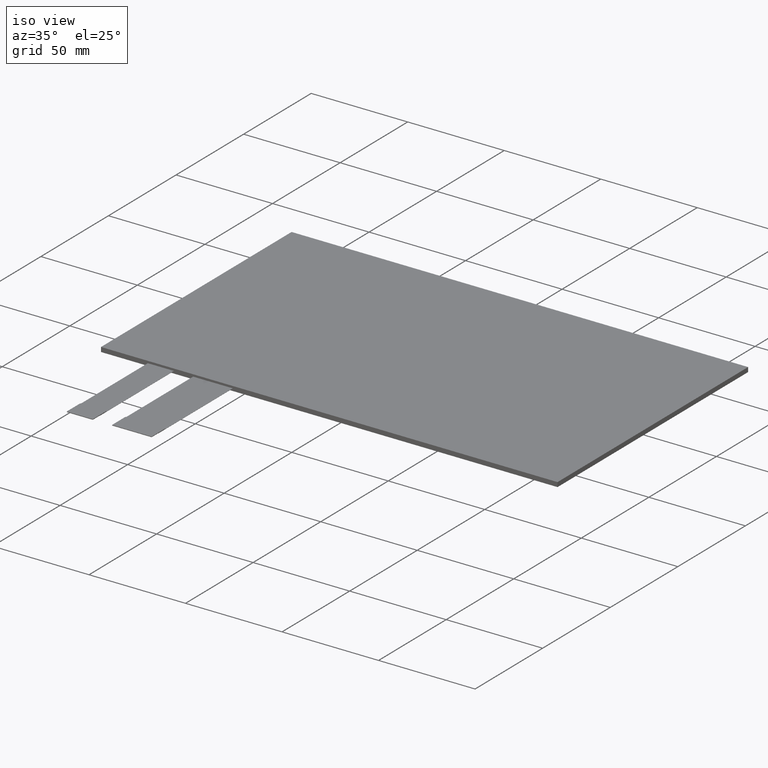
[diagram: clean part render]
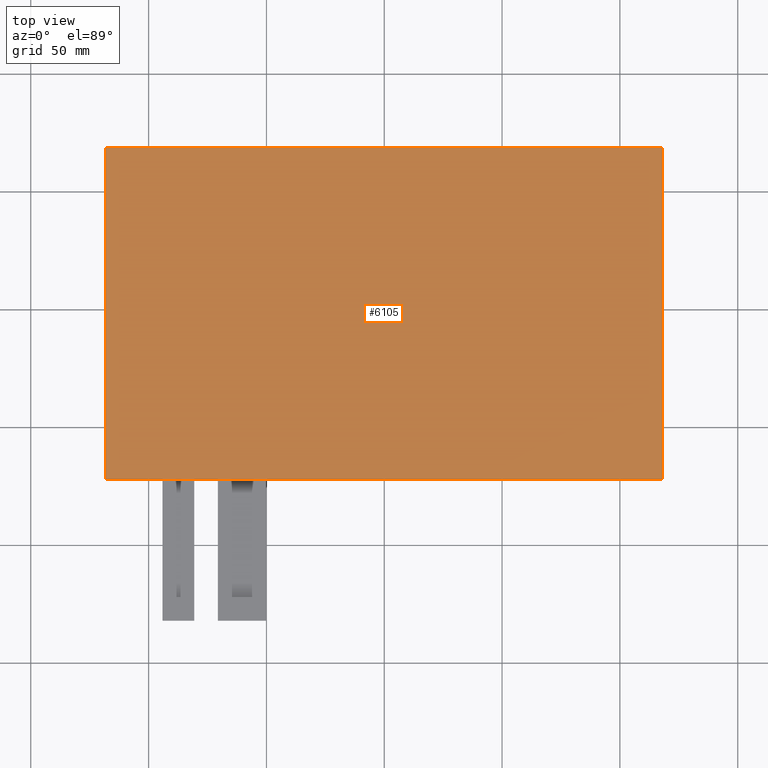
[diagram: tour spotlight — one face highlighted and labeled with its STEP entity id]
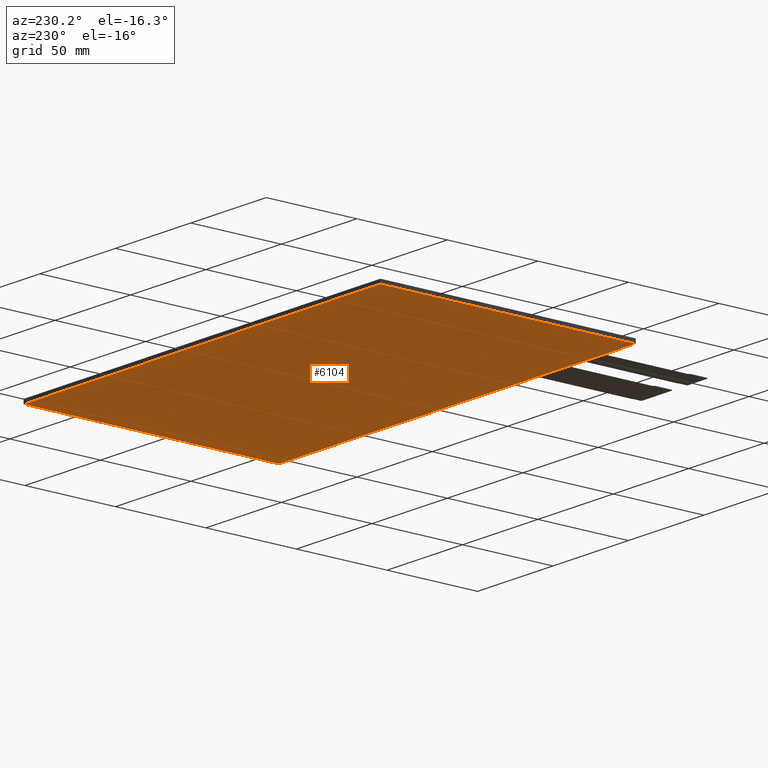
[diagram: tour spotlight — one face highlighted and labeled with its STEP entity id]
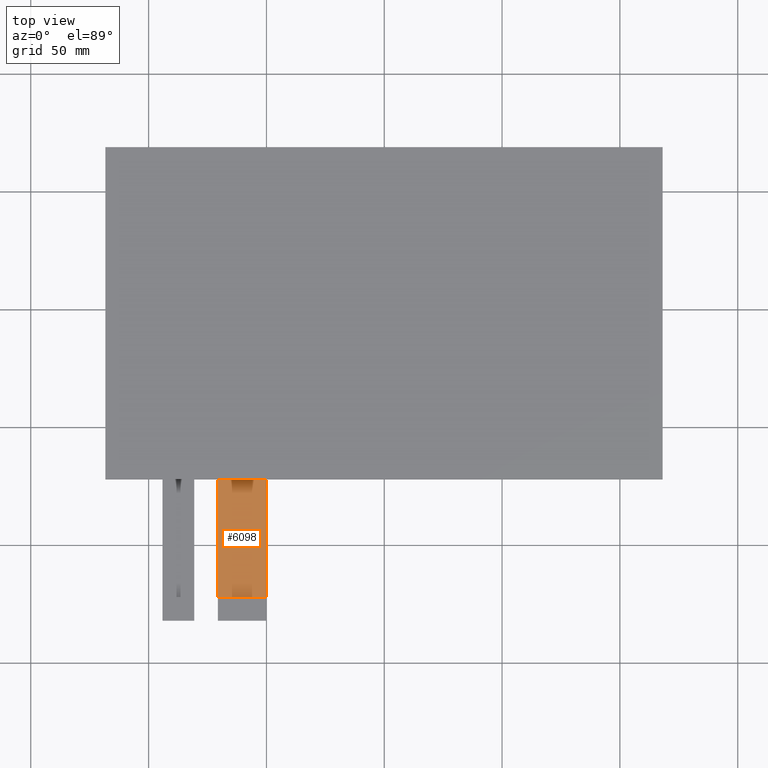
[diagram: tour spotlight — one face highlighted and labeled with its STEP entity id]
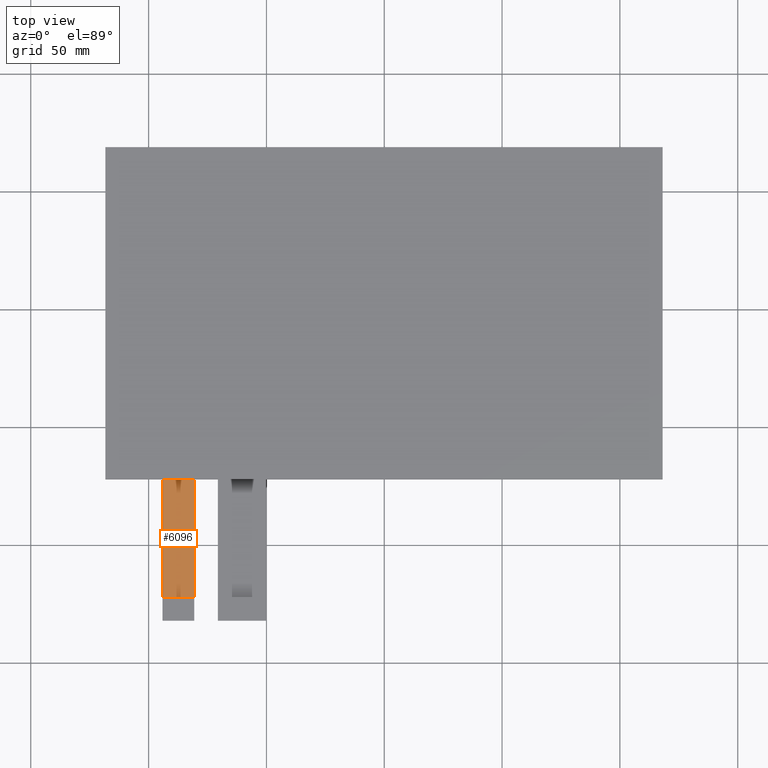
[diagram: tour spotlight — one face highlighted and labeled with its STEP entity id]
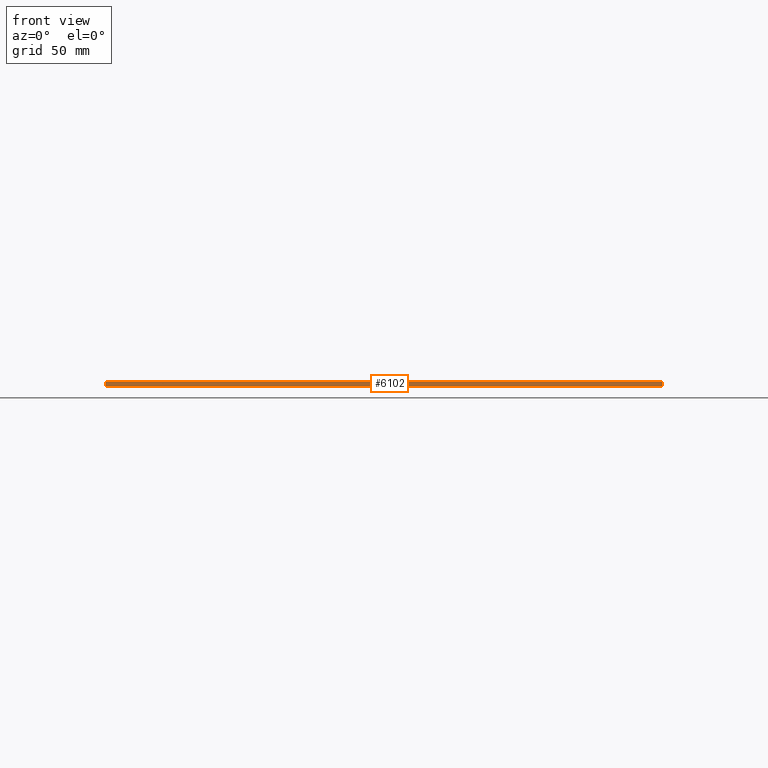
[diagram: tour spotlight — one face highlighted and labeled with its STEP entity id]
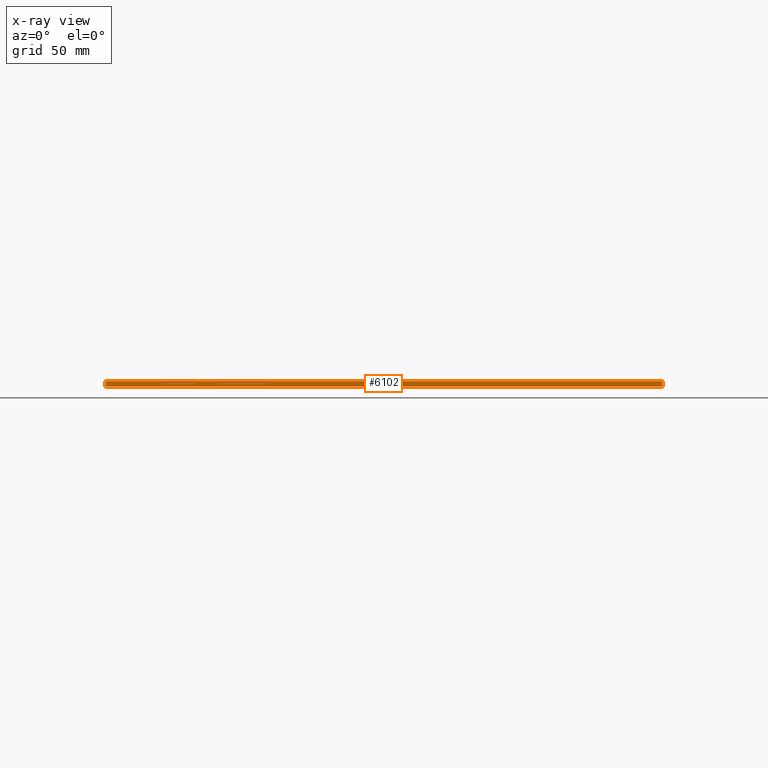
[diagram: x-ray of the same camera — body ghosted, this tour face saturated]
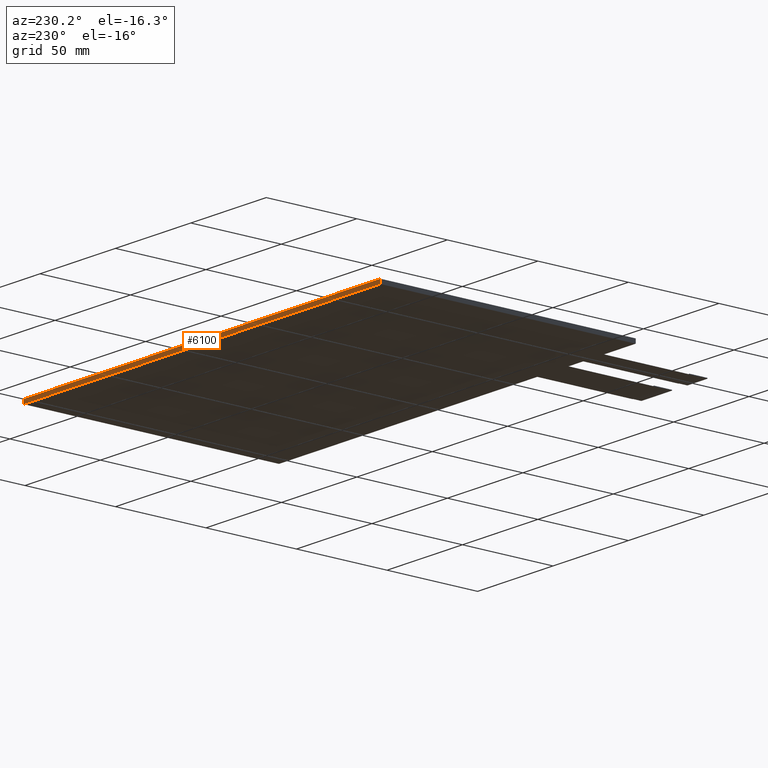
[diagram: tour spotlight — one face highlighted and labeled with its STEP entity id]
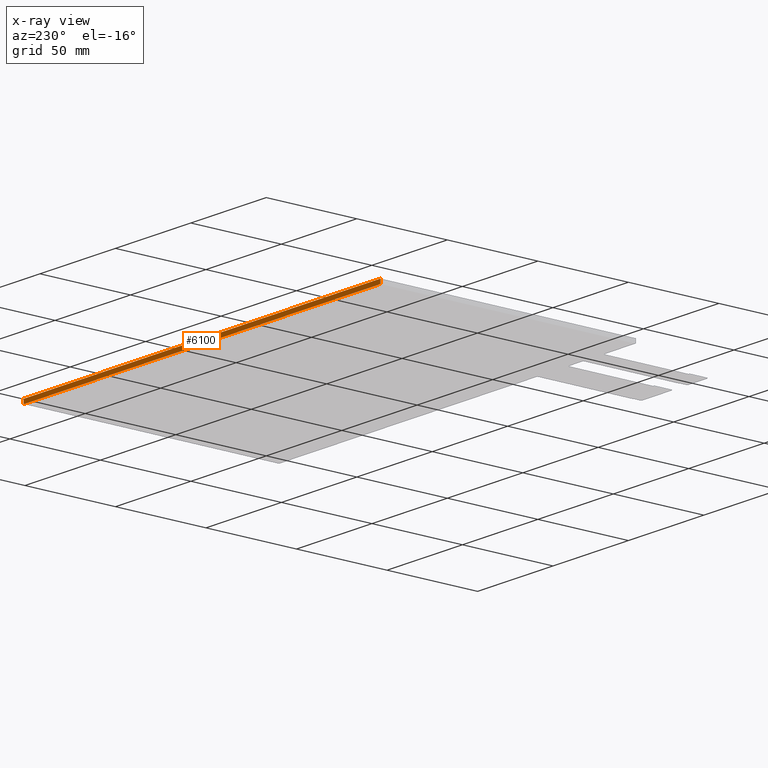
[diagram: x-ray of the same camera — body ghosted, this tour face saturated]
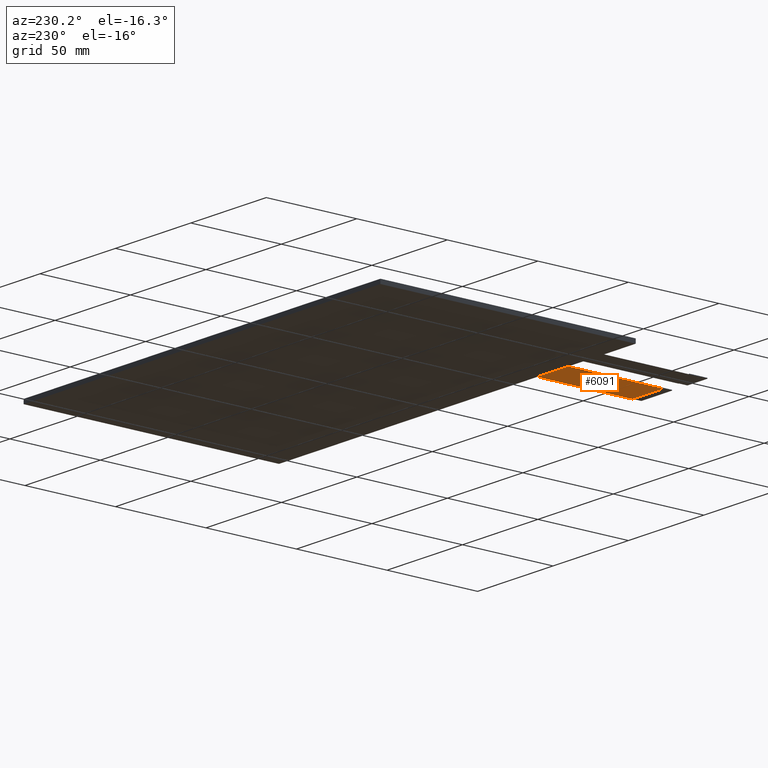
[diagram: tour spotlight — one face highlighted and labeled with its STEP entity id]
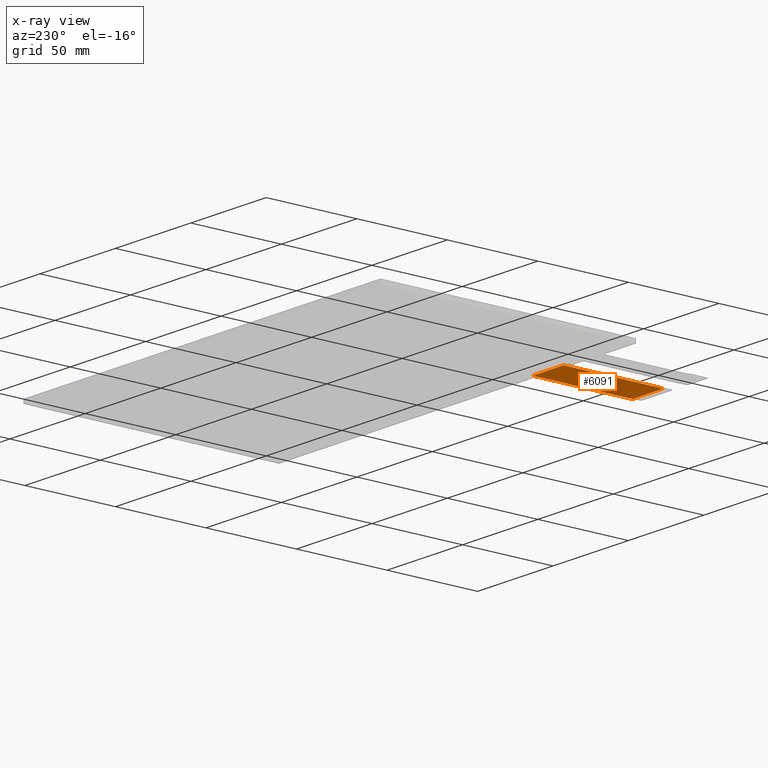
[diagram: x-ray of the same camera — body ghosted, this tour face saturated]
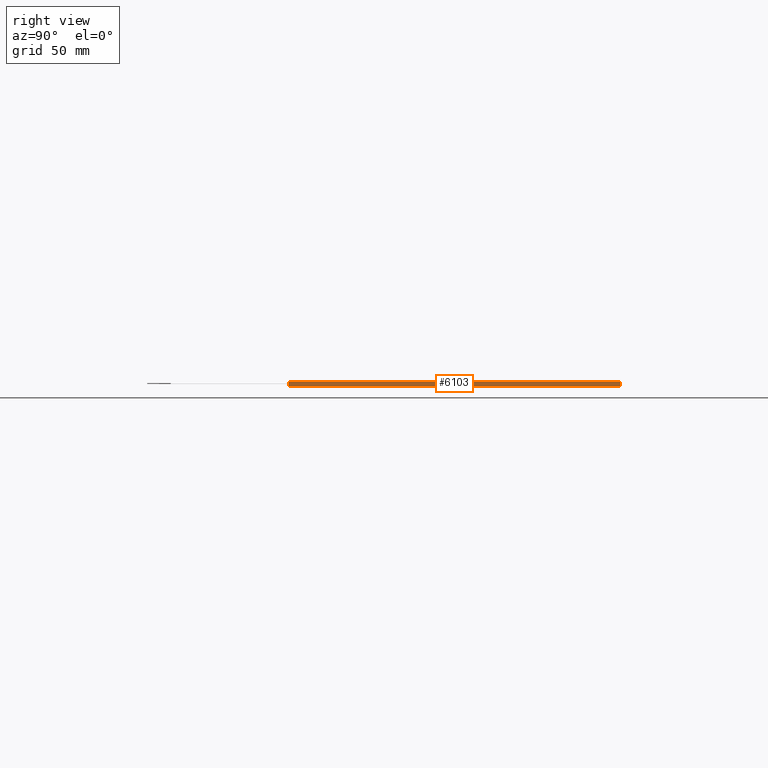
[diagram: tour spotlight — one face highlighted and labeled with its STEP entity id]
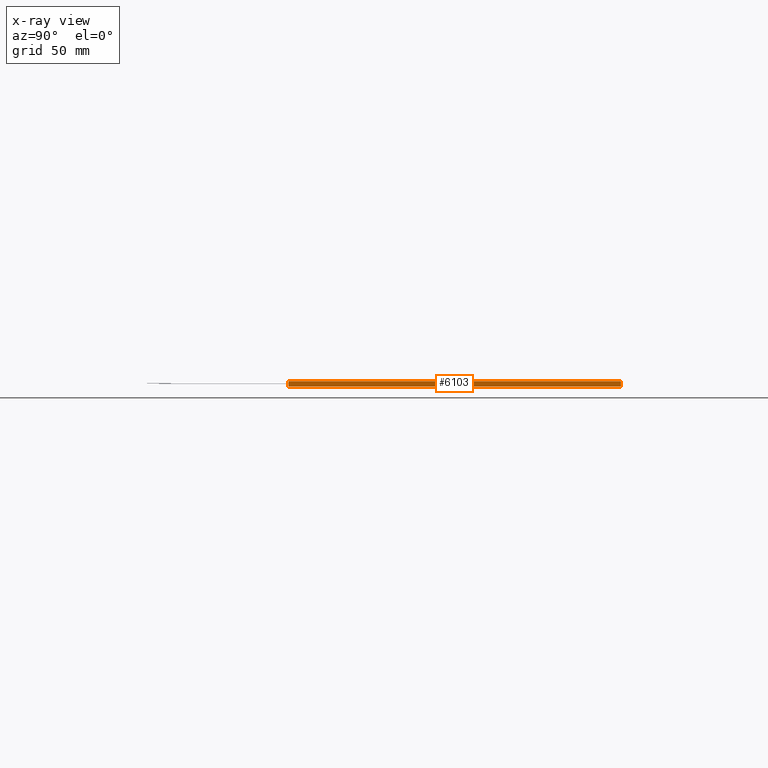
[diagram: x-ray of the same camera — body ghosted, this tour face saturated]
A machine part: a face-by-face anatomy tour. The part has 292 B-rep faces; the first image is the clean iso view, then the 8 largest visible faces are spotlighted one at a time (largest first), each with its STEP entity span.

Face 1 — top view, entity #6105. In plain terms, the highlighted planar face has unit normal (0, 0, 1).
Definition (entity closure, byte-faithful):
#335=PLANE('',#6425);
#627=FACE_OUTER_BOUND('',#921,.T.);
#921=EDGE_LOOP('',(#5806,#5807,#5808,#5809));
#1766=LINE('',#9594,#2622);
#1770=LINE('',#9602,#2626);
#1773=LINE('',#9608,#2629);
#1776=LINE('',#9613,#2632);
#2622=VECTOR('',#7862,10.);
#2626=VECTOR('',#7868,10.);
#2629=VECTOR('',#7873,10.);
#2632=VECTOR('',#7878,10.);
#3210=VERTEX_POINT('',#9592);
#3211=VERTEX_POINT('',#9593);
#3214=VERTEX_POINT('',#9601);
#3216=VERTEX_POINT('',#9607);
#4070=EDGE_CURVE('',#3210,#3211,#1766,.T.);
#4074=EDGE_CURVE('',#3211,#3214,#1770,.T.);
#4077=EDGE_CURVE('',#3214,#3216,#1773,.T.);
#4080=EDGE_CURVE('',#3216,#3210,#1776,.T.);
#5806=ORIENTED_EDGE('',*,*,#4080,.T.);
#5807=ORIENTED_EDGE('',*,*,#4070,.T.);
#5808=ORIENTED_EDGE('',*,*,#4074,.T.);
#5809=ORIENTED_EDGE('',*,*,#4077,.T.);
#6105=ADVANCED_FACE('',(#627),#335,.T.);
#6425=AXIS2_PLACEMENT_3D('',#9616,#7882,#7883);
#7862=DIRECTION('',(-1.,0.,0.));
#7868=DIRECTION('',(1.25982754567394E-16,-1.,0.));
#7873=DIRECTION('',(1.,1.12665338651179E-16,0.));
#7878=DIRECTION('',(0.,1.,0.));
#7882=DIRECTION('center_axis',(0.,0.,1.));
#7883=DIRECTION('ref_axis',(1.,0.,0.));
#9592=CARTESIAN_POINT('',(118.14,68.92,0.));
#9593=CARTESIAN_POINT('',(-118.36,68.92,0.));
#9594=CARTESIAN_POINT('',(118.14,68.92,0.));
#9601=CARTESIAN_POINT('',(-118.36,-72.08,0.));
#9602=CARTESIAN_POINT('',(-118.36,68.9200000000001,0.));
#9607=CARTESIAN_POINT('',(118.14,-72.08,0.));
#9608=CARTESIAN_POINT('',(-118.36,-72.08,0.));
#9613=CARTESIAN_POINT('',(118.14,-72.08,0.));
#9616=CARTESIAN_POINT('Origin',(-8.88178419700125E-15,1.77635683940025E-14,
0.));

Face 2 — auxiliary view, entity #6104. In plain terms, the highlighted planar face has unit normal (0, 0, -1).
Definition (entity closure, byte-faithful):
#334=PLANE('',#6424);
#626=FACE_OUTER_BOUND('',#920,.T.);
#920=EDGE_LOOP('',(#5802,#5803,#5804,#5805));
#1768=LINE('',#9598,#2624);
#1771=LINE('',#9604,#2627);
#1774=LINE('',#9610,#2630);
#1777=LINE('',#9614,#2633);
#2624=VECTOR('',#7864,10.);
#2627=VECTOR('',#7869,10.);
#2630=VECTOR('',#7874,10.);
#2633=VECTOR('',#7879,10.);
#3212=VERTEX_POINT('',#9595);
#3213=VERTEX_POINT('',#9597);
#3215=VERTEX_POINT('',#9603);
#3217=VERTEX_POINT('',#9609);
#4072=EDGE_CURVE('',#3213,#3212,#1768,.T.);
#4075=EDGE_CURVE('',#3215,#3213,#1771,.T.);
#4078=EDGE_CURVE('',#3217,#3215,#1774,.T.);
#4081=EDGE_CURVE('',#3212,#3217,#1777,.T.);
#5802=ORIENTED_EDGE('',*,*,#4081,.T.);
#5803=ORIENTED_EDGE('',*,*,#4078,.T.);
#5804=ORIENTED_EDGE('',*,*,#4075,.T.);
#5805=ORIENTED_EDGE('',*,*,#4072,.T.);
#6104=ADVANCED_FACE('',(#626),#334,.T.);
#6424=AXIS2_PLACEMENT_3D('',#9615,#7880,#7881);
#7864=DIRECTION('',(1.,0.,0.));
#7869=DIRECTION('',(-1.25982754567394E-16,1.,0.));
#7874=DIRECTION('',(-1.,-1.12665338651179E-16,0.));
#7879=DIRECTION('',(0.,-1.,0.));
#7880=DIRECTION('center_axis',(0.,0.,-1.));
#7881=DIRECTION('ref_axis',(-1.,0.,0.));
#9595=CARTESIAN_POINT('',(118.14,68.92,-2.35));
#9597=CARTESIAN_POINT('',(-118.36,68.92,-2.35));
#9598=CARTESIAN_POINT('',(118.14,68.92,-2.35));
#9603=CARTESIAN_POINT('',(-118.36,-72.08,-2.35));
#9604=CARTESIAN_POINT('',(-118.36,68.9200000000001,-2.35));
#9609=CARTESIAN_POINT('',(118.14,-72.08,-2.35));
#9610=CARTESIAN_POINT('',(-118.36,-72.08,-2.35));
#9614=CARTESIAN_POINT('',(118.14,-72.08,-2.35));
#9615=CARTESIAN_POINT('Origin',(-0.110000000000028,-1.57999999999998,-2.35));

Face 3 — top view, entity #6098. In plain terms, the highlighted planar face has unit normal (0, 0, 1).
Definition (entity closure, byte-faithful):
#328=PLANE('',#6418);
#620=FACE_OUTER_BOUND('',#912,.T.);
#912=EDGE_LOOP('',(#5770,#5771,#5772,#5773));
#1755=LINE('',#9571,#2611);
#1757=LINE('',#9575,#2613);
#1763=LINE('',#9586,#2619);
#1764=LINE('',#9588,#2620);
#2611=VECTOR('',#7835,10.);
#2613=VECTOR('',#7839,10.);
#2619=VECTOR('',#7853,10.);
#2620=VECTOR('',#7856,10.);
#3206=VERTEX_POINT('',#9568);
#3207=VERTEX_POINT('',#9570);
#3208=VERTEX_POINT('',#9574);
#3209=VERTEX_POINT('',#9584);
#4059=EDGE_CURVE('',#3207,#3206,#1755,.T.);
#4061=EDGE_CURVE('',#3206,#3208,#1757,.T.);
#4067=EDGE_CURVE('',#3208,#3209,#1763,.T.);
#4068=EDGE_CURVE('',#3207,#3209,#1764,.T.);
#5770=ORIENTED_EDGE('',*,*,#4061,.T.);
#5771=ORIENTED_EDGE('',*,*,#4067,.T.);
#5772=ORIENTED_EDGE('',*,*,#4068,.F.);
#5773=ORIENTED_EDGE('',*,*,#4059,.T.);
#6098=ADVANCED_FACE('',(#620),#328,.T.);
#6418=AXIS2_PLACEMENT_3D('',#9587,#7854,#7855);
#7835=DIRECTION('',(1.48029736616688E-16,-1.,0.));
#7839=DIRECTION('',(1.,0.,0.));
#7853=DIRECTION('',(-2.96059473233375E-16,1.,0.));
#7854=DIRECTION('center_axis',(0.,0.,1.));
#7855=DIRECTION('ref_axis',(1.,0.,0.));
#7856=DIRECTION('',(1.,1.12665338651179E-16,0.));
#9568=CARTESIAN_POINT('',(-70.61,-122.08,-1.1));
#9570=CARTESIAN_POINT('',(-70.61,-72.08,-1.1));
#9571=CARTESIAN_POINT('',(-70.61,-72.08,-1.1));
#9574=CARTESIAN_POINT('',(-50.11,-122.08,-1.1));
#9575=CARTESIAN_POINT('',(-55.235,-122.08,-1.1));
#9584=CARTESIAN_POINT('',(-50.11,-72.08,-1.1));
#9586=CARTESIAN_POINT('',(-50.11,-132.08,-1.1));
#9587=CARTESIAN_POINT('Origin',(-60.36,-102.08,-1.1));
#9588=CARTESIAN_POINT('',(28.89,-72.08,-1.1));

Face 4 — top view, entity #6096. In plain terms, the highlighted planar face has unit normal (0, 0, 1).
Definition (entity closure, byte-faithful):
#326=PLANE('',#6416);
#618=FACE_OUTER_BOUND('',#910,.T.);
#910=EDGE_LOOP('',(#5758,#5759,#5760,#5761));
#1039=LINE('',#8130,#1895);
#1748=LINE('',#9557,#2604);
#1759=LINE('',#9578,#2615);
#1761=LINE('',#9582,#2617);
#1895=VECTOR('',#6563,10.);
#2604=VECTOR('',#7824,10.);
#2615=VECTOR('',#7843,10.);
#2617=VECTOR('',#7849,10.);
#2759=VERTEX_POINT('',#8127);
#2760=VERTEX_POINT('',#8129);
#3201=VERTEX_POINT('',#9554);
#3202=VERTEX_POINT('',#9556);
#3339=EDGE_CURVE('',#2760,#2759,#1039,.T.);
#4052=EDGE_CURVE('',#3202,#3201,#1748,.T.);
#4063=EDGE_CURVE('',#3201,#2760,#1759,.T.);
#4065=EDGE_CURVE('',#3202,#2759,#1761,.T.);
#5758=ORIENTED_EDGE('',*,*,#4063,.T.);
#5759=ORIENTED_EDGE('',*,*,#3339,.T.);
#5760=ORIENTED_EDGE('',*,*,#4065,.F.);
#5761=ORIENTED_EDGE('',*,*,#4052,.T.);
#6096=ADVANCED_FACE('',(#618),#326,.T.);
#6416=AXIS2_PLACEMENT_3D('',#9581,#7847,#7848);
#6563=DIRECTION('',(-2.96059473233375E-16,1.,0.));
#7824=DIRECTION('',(5.9211894646675E-16,-1.,0.));
#7843=DIRECTION('',(1.,0.,0.));
#7847=DIRECTION('center_axis',(0.,0.,1.));
#7848=DIRECTION('ref_axis',(1.,0.,0.));
#7849=DIRECTION('',(1.,1.12665338651179E-16,0.));
#8127=CARTESIAN_POINT('',(-80.61,-72.08,-1.1));
#8129=CARTESIAN_POINT('',(-80.61,-122.08,-1.1));
#8130=CARTESIAN_POINT('',(-80.61,-132.08,-1.1));
#9554=CARTESIAN_POINT('',(-94.11,-122.08,-1.1));
#9556=CARTESIAN_POINT('',(-94.11,-72.08,-1.1));
#9557=CARTESIAN_POINT('',(-94.11,-72.08,-1.1));
#9578=CARTESIAN_POINT('',(-83.985,-122.08,-1.1));
#9581=CARTESIAN_POINT('Origin',(-87.36,-102.08,-1.1));
#9582=CARTESIAN_POINT('',(15.39,-72.08,-1.1));

Face 5 — front view, entity #6102. An x-ray twin of the same camera follows (body ghosted, this face saturated) — the face is partly hidden behind the body. In plain terms, the highlighted planar face has unit normal (0, -1, 0).
Definition (entity closure, byte-faithful):
#46=FACE_BOUND('',#917,.T.);
#47=FACE_BOUND('',#918,.T.);
#332=PLANE('',#6422);
#624=FACE_OUTER_BOUND('',#916,.T.);
#916=EDGE_LOOP('',(#5786,#5787,#5788,#5789));
#917=EDGE_LOOP('',(#5790,#5791,#5792,#5793));
#918=EDGE_LOOP('',(#5794,#5795,#5796,#5797));
#1038=LINE('',#8128,#1894);
#1749=LINE('',#9559,#2605);
#1752=LINE('',#9565,#2608);
#1756=LINE('',#9572,#2612);
#1761=LINE('',#9582,#2617);
#1762=LINE('',#9585,#2618);
#1764=LINE('',#9588,#2620);
#1765=LINE('',#9590,#2621);
#1772=LINE('',#9605,#2628);
#1773=LINE('',#9608,#2629);
#1774=LINE('',#9610,#2630);
#1775=LINE('',#9611,#2631);
#1894=VECTOR('',#6562,10.);
#2605=VECTOR('',#7825,10.);
#2608=VECTOR('',#7830,10.);
#2612=VECTOR('',#7836,10.);
#2617=VECTOR('',#7849,10.);
#2618=VECTOR('',#7852,10.);
#2620=VECTOR('',#7856,10.);
#2621=VECTOR('',#7859,10.);
#2628=VECTOR('',#7870,10.);
#2629=VECTOR('',#7873,10.);
#2630=VECTOR('',#7874,10.);
#2631=VECTOR('',#7875,10.);
#2758=VERTEX_POINT('',#8125);
#2759=VERTEX_POINT('',#8127);
#3202=VERTEX_POINT('',#9556);
#3203=VERTEX_POINT('',#9558);
#3204=VERTEX_POINT('',#9562);
#3205=VERTEX_POINT('',#9564);
#3207=VERTEX_POINT('',#9570);
#3209=VERTEX_POINT('',#9584);
#3214=VERTEX_POINT('',#9601);
#3215=VERTEX_POINT('',#9603);
#3216=VERTEX_POINT('',#9607);
#3217=VERTEX_POINT('',#9609);
#3338=EDGE_CURVE('',#2759,#2758,#1038,.T.);
#4053=EDGE_CURVE('',#3203,#3202,#1749,.T.);
#4056=EDGE_CURVE('',#3205,#3204,#1752,.T.);
#4060=EDGE_CURVE('',#3204,#3207,#1756,.T.);
#4065=EDGE_CURVE('',#3202,#2759,#1761,.T.);
#4066=EDGE_CURVE('',#3209,#3205,#1762,.T.);
#4068=EDGE_CURVE('',#3207,#3209,#1764,.T.);
#4069=EDGE_CURVE('',#2758,#3203,#1765,.T.);
#4076=EDGE_CURVE('',#3214,#3215,#1772,.T.);
#4077=EDGE_CURVE('',#3214,#3216,#1773,.T.);
#4078=EDGE_CURVE('',#3217,#3215,#1774,.T.);
#4079=EDGE_CURVE('',#3216,#3217,#1775,.T.);
#5786=ORIENTED_EDGE('',*,*,#4077,.F.);
#5787=ORIENTED_EDGE('',*,*,#4076,.T.);
#5788=ORIENTED_EDGE('',*,*,#4078,.F.);
#5789=ORIENTED_EDGE('',*,*,#4079,.F.);
#5790=ORIENTED_EDGE('',*,*,#4060,.T.);
#5791=ORIENTED_EDGE('',*,*,#4068,.T.);
#5792=ORIENTED_EDGE('',*,*,#4066,.T.);
#5793=ORIENTED_EDGE('',*,*,#4056,.T.);
#5794=ORIENTED_EDGE('',*,*,#3338,.T.);
#5795=ORIENTED_EDGE('',*,*,#4069,.T.);
#5796=ORIENTED_EDGE('',*,*,#4053,.T.);
#5797=ORIENTED_EDGE('',*,*,#4065,.T.);
#6102=ADVANCED_FACE('',(#624,#46,#47),#332,.T.);
#6422=AXIS2_PLACEMENT_3D('',#9606,#7871,#7872);
#6562=DIRECTION('',(0.,0.,-1.));
#7825=DIRECTION('',(0.,0.,1.));
#7830=DIRECTION('',(-1.,-1.12665338651179E-16,0.));
#7836=DIRECTION('',(0.,0.,1.));
#7849=DIRECTION('',(1.,1.12665338651179E-16,0.));
#7852=DIRECTION('',(0.,0.,-1.));
#7856=DIRECTION('',(1.,1.12665338651179E-16,0.));
#7859=DIRECTION('',(-1.,-1.12665338651179E-16,0.));
#7870=DIRECTION('',(0.,0.,-1.));
#7871=DIRECTION('center_axis',(1.12665338651179E-16,-1.,0.));
#7872=DIRECTION('ref_axis',(-1.,-1.12665338651179E-16,0.));
#7873=DIRECTION('',(1.,1.12665338651179E-16,0.));
#7874=DIRECTION('',(-1.,-1.12665338651179E-16,0.));
#7875=DIRECTION('',(0.,0.,-1.));
#8125=CARTESIAN_POINT('',(-80.61,-72.08,-1.2));
#8127=CARTESIAN_POINT('',(-80.61,-72.08,-1.1));
#8128=CARTESIAN_POINT('',(-80.61,-72.08,-0.55));
#9556=CARTESIAN_POINT('',(-94.11,-72.08,-1.1));
#9558=CARTESIAN_POINT('',(-94.11,-72.08,-1.2));
#9559=CARTESIAN_POINT('',(-94.11,-72.08,-0.55));
#9562=CARTESIAN_POINT('',(-70.61,-72.08,-1.2));
#9564=CARTESIAN_POINT('',(-50.11,-72.08,-1.2));
#9565=CARTESIAN_POINT('',(28.89,-72.08,-1.2));
#9570=CARTESIAN_POINT('',(-70.61,-72.08,-1.1));
#9572=CARTESIAN_POINT('',(-70.61,-72.08,-0.55));
#9582=CARTESIAN_POINT('',(15.39,-72.08,-1.1));
#9584=CARTESIAN_POINT('',(-50.11,-72.08,-1.1));
#9585=CARTESIAN_POINT('',(-50.11,-72.08,-0.55));
#9588=CARTESIAN_POINT('',(28.89,-72.08,-1.1));
#9590=CARTESIAN_POINT('',(15.39,-72.08,-1.2));
#9601=CARTESIAN_POINT('',(-118.36,-72.08,0.));
#9603=CARTESIAN_POINT('',(-118.36,-72.08,-2.35));
#9605=CARTESIAN_POINT('',(-118.36,-72.08,0.));
#9606=CARTESIAN_POINT('Origin',(118.14,-72.08,0.));
#9607=CARTESIAN_POINT('',(118.14,-72.08,0.));
#9608=CARTESIAN_POINT('',(-118.36,-72.08,0.));
#9609=CARTESIAN_POINT('',(118.14,-72.08,-2.35));
#9610=CARTESIAN_POINT('',(-118.36,-72.08,-2.35));
#9611=CARTESIAN_POINT('',(118.14,-72.08,0.));

Face 6 — auxiliary view, entity #6100. An x-ray twin of the same camera follows (body ghosted, this face saturated) — the face is partly hidden behind the body. In plain terms, the highlighted planar face has unit normal (0, 1, 0).
Definition (entity closure, byte-faithful):
#330=PLANE('',#6420);
#622=FACE_OUTER_BOUND('',#914,.T.);
#914=EDGE_LOOP('',(#5778,#5779,#5780,#5781));
#1766=LINE('',#9594,#2622);
#1767=LINE('',#9596,#2623);
#1768=LINE('',#9598,#2624);
#1769=LINE('',#9599,#2625);
#2622=VECTOR('',#7862,10.);
#2623=VECTOR('',#7863,10.);
#2624=VECTOR('',#7864,10.);
#2625=VECTOR('',#7865,10.);
#3210=VERTEX_POINT('',#9592);
#3211=VERTEX_POINT('',#9593);
#3212=VERTEX_POINT('',#9595);
#3213=VERTEX_POINT('',#9597);
#4070=EDGE_CURVE('',#3210,#3211,#1766,.T.);
#4071=EDGE_CURVE('',#3210,#3212,#1767,.T.);
#4072=EDGE_CURVE('',#3213,#3212,#1768,.T.);
#4073=EDGE_CURVE('',#3211,#3213,#1769,.T.);
#5778=ORIENTED_EDGE('',*,*,#4070,.F.);
#5779=ORIENTED_EDGE('',*,*,#4071,.T.);
#5780=ORIENTED_EDGE('',*,*,#4072,.F.);
#5781=ORIENTED_EDGE('',*,*,#4073,.F.);
#6100=ADVANCED_FACE('',(#622),#330,.T.);
#6420=AXIS2_PLACEMENT_3D('',#9591,#7860,#7861);
#7860=DIRECTION('center_axis',(0.,1.,0.));
#7861=DIRECTION('ref_axis',(1.,0.,0.));
#7862=DIRECTION('',(-1.,0.,0.));
#7863=DIRECTION('',(0.,0.,-1.));
#7864=DIRECTION('',(1.,0.,0.));
#7865=DIRECTION('',(0.,0.,-1.));
#9591=CARTESIAN_POINT('Origin',(-118.36,68.92,0.));
#9592=CARTESIAN_POINT('',(118.14,68.92,0.));
#9593=CARTESIAN_POINT('',(-118.36,68.92,0.));
#9594=CARTESIAN_POINT('',(118.14,68.92,0.));
#9595=CARTESIAN_POINT('',(118.14,68.92,-2.35));
#9596=CARTESIAN_POINT('',(118.14,68.92,0.));
#9597=CARTESIAN_POINT('',(-118.36,68.92,-2.35));
#9598=CARTESIAN_POINT('',(118.14,68.92,-2.35));
#9599=CARTESIAN_POINT('',(-118.36,68.92,0.));

Face 7 — auxiliary view, entity #6091. An x-ray twin of the same camera follows (body ghosted, this face saturated) — the face is partly hidden behind the body. In plain terms, the highlighted planar face has unit normal (0, 0, -1).
Definition (entity closure, byte-faithful):
#321=PLANE('',#6411);
#613=FACE_OUTER_BOUND('',#905,.T.);
#905=EDGE_LOOP('',(#5732,#5733,#5734,#5735));
#1744=LINE('',#9549,#2600);
#1751=LINE('',#9563,#2607);
#1752=LINE('',#9565,#2608);
#1753=LINE('',#9566,#2609);
#2600=VECTOR('',#7818,10.);
#2607=VECTOR('',#7829,10.);
#2608=VECTOR('',#7830,10.);
#2609=VECTOR('',#7831,10.);
#3198=VERTEX_POINT('',#9546);
#3199=VERTEX_POINT('',#9548);
#3204=VERTEX_POINT('',#9562);
#3205=VERTEX_POINT('',#9564);
#4048=EDGE_CURVE('',#3199,#3198,#1744,.T.);
#4055=EDGE_CURVE('',#3198,#3204,#1751,.T.);
#4056=EDGE_CURVE('',#3205,#3204,#1752,.T.);
#4057=EDGE_CURVE('',#3205,#3199,#1753,.T.);
#5732=ORIENTED_EDGE('',*,*,#4048,.T.);
#5733=ORIENTED_EDGE('',*,*,#4055,.T.);
#5734=ORIENTED_EDGE('',*,*,#4056,.F.);
#5735=ORIENTED_EDGE('',*,*,#4057,.T.);
#6091=ADVANCED_FACE('',(#613),#321,.T.);
#6411=AXIS2_PLACEMENT_3D('',#9561,#7827,#7828);
#7818=DIRECTION('',(-1.,0.,0.));
#7827=DIRECTION('center_axis',(0.,0.,-1.));
#7828=DIRECTION('ref_axis',(-1.,0.,0.));
#7829=DIRECTION('',(-1.48029736616688E-16,1.,0.));
#7830=DIRECTION('',(-1.,-1.12665338651179E-16,0.));
#7831=DIRECTION('',(2.96059473233375E-16,-1.,0.));
#9546=CARTESIAN_POINT('',(-70.61,-127.08,-1.2));
#9548=CARTESIAN_POINT('',(-50.11,-127.08,-1.2));
#9549=CARTESIAN_POINT('',(-55.235,-127.08,-1.2));
#9561=CARTESIAN_POINT('Origin',(-60.36,-102.08,-1.2));
#9562=CARTESIAN_POINT('',(-70.61,-72.08,-1.2));
#9563=CARTESIAN_POINT('',(-70.61,-72.08,-1.2));
#9564=CARTESIAN_POINT('',(-50.11,-72.08,-1.2));
#9565=CARTESIAN_POINT('',(28.89,-72.08,-1.2));
#9566=CARTESIAN_POINT('',(-50.11,-132.08,-1.2));

Face 8 — right view, entity #6103. An x-ray twin of the same camera follows (body ghosted, this face saturated) — the face is partly hidden behind the body. In plain terms, the highlighted planar face has unit normal (1, 0, 0).
Definition (entity closure, byte-faithful):
#333=PLANE('',#6423);
#625=FACE_OUTER_BOUND('',#919,.T.);
#919=EDGE_LOOP('',(#5798,#5799,#5800,#5801));
#1767=LINE('',#9596,#2623);
#1775=LINE('',#9611,#2631);
#1776=LINE('',#9613,#2632);
#1777=LINE('',#9614,#2633);
#2623=VECTOR('',#7863,10.);
#2631=VECTOR('',#7875,10.);
#2632=VECTOR('',#7878,10.);
#2633=VECTOR('',#7879,10.);
#3210=VERTEX_POINT('',#9592);
#3212=VERTEX_POINT('',#9595);
#3216=VERTEX_POINT('',#9607);
#3217=VERTEX_POINT('',#9609);
#4071=EDGE_CURVE('',#3210,#3212,#1767,.T.);
#4079=EDGE_CURVE('',#3216,#3217,#1775,.T.);
#4080=EDGE_CURVE('',#3216,#3210,#1776,.T.);
#4081=EDGE_CURVE('',#3212,#3217,#1777,.T.);
#5798=ORIENTED_EDGE('',*,*,#4080,.F.);
#5799=ORIENTED_EDGE('',*,*,#4079,.T.);
#5800=ORIENTED_EDGE('',*,*,#4081,.F.);
#5801=ORIENTED_EDGE('',*,*,#4071,.F.);
#6103=ADVANCED_FACE('',(#625),#333,.T.);
#6423=AXIS2_PLACEMENT_3D('',#9612,#7876,#7877);
#7863=DIRECTION('',(0.,0.,-1.));
#7875=DIRECTION('',(0.,0.,-1.));
#7876=DIRECTION('center_axis',(1.,0.,0.));
#7877=DIRECTION('ref_axis',(0.,-1.,0.));
#7878=DIRECTION('',(0.,1.,0.));
#7879=DIRECTION('',(0.,-1.,0.));
#9592=CARTESIAN_POINT('',(118.14,68.92,0.));
#9595=CARTESIAN_POINT('',(118.14,68.92,-2.35));
#9596=CARTESIAN_POINT('',(118.14,68.92,0.));
#9607=CARTESIAN_POINT('',(118.14,-72.08,0.));
#9609=CARTESIAN_POINT('',(118.14,-72.08,-2.35));
#9611=CARTESIAN_POINT('',(118.14,-72.08,0.));
#9612=CARTESIAN_POINT('Origin',(118.14,68.92,0.));
#9613=CARTESIAN_POINT('',(118.14,-72.08,0.));
#9614=CARTESIAN_POINT('',(118.14,-72.08,-2.35));